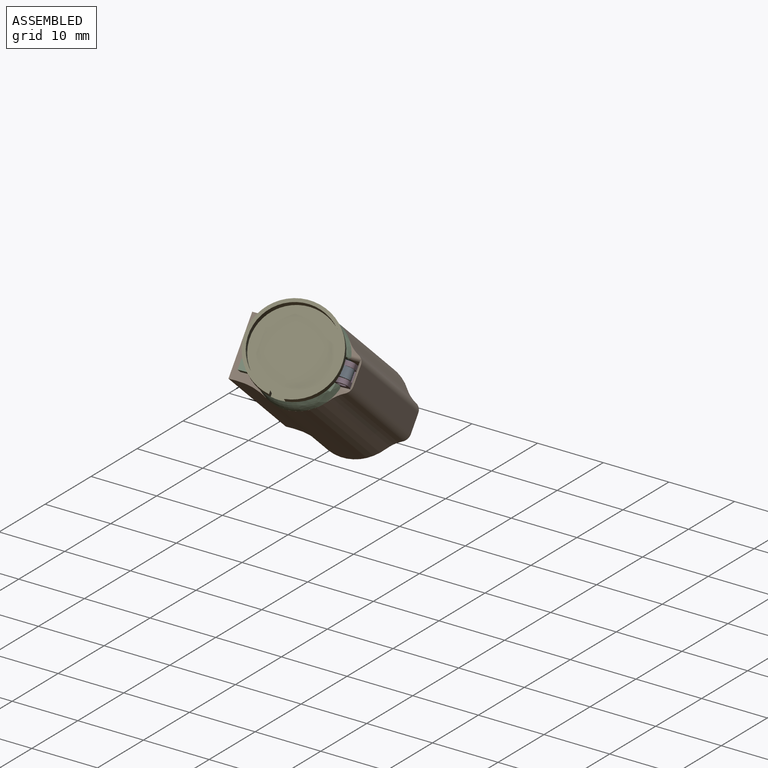
[diagram: assembled view]
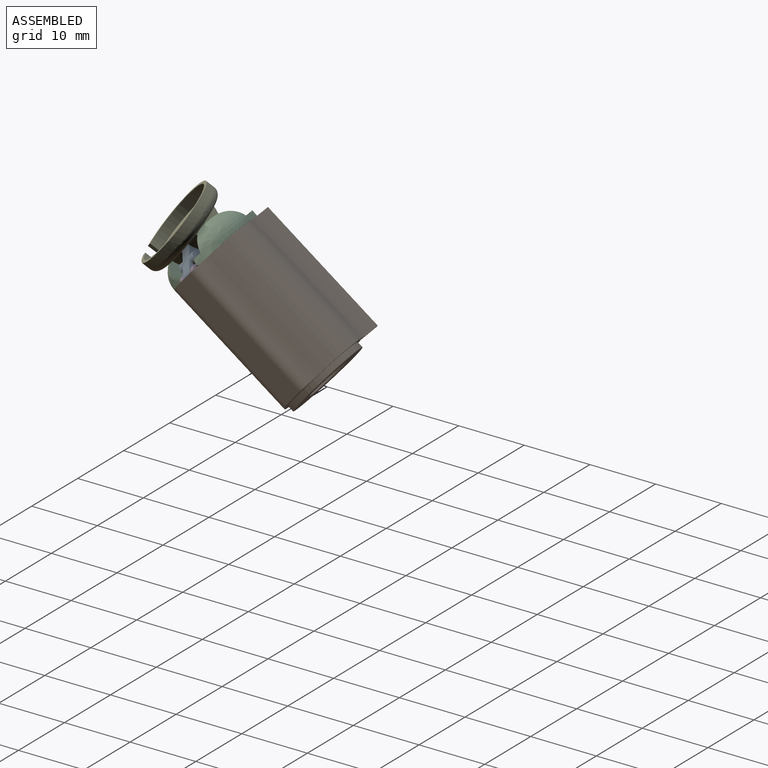
[diagram: assembled view, second angle]
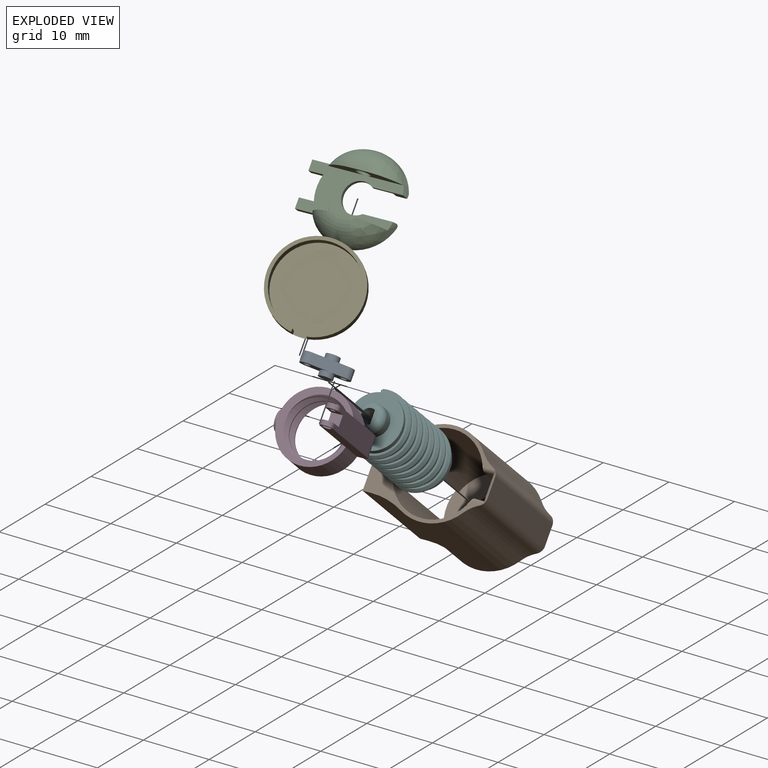
[diagram: exploded view]
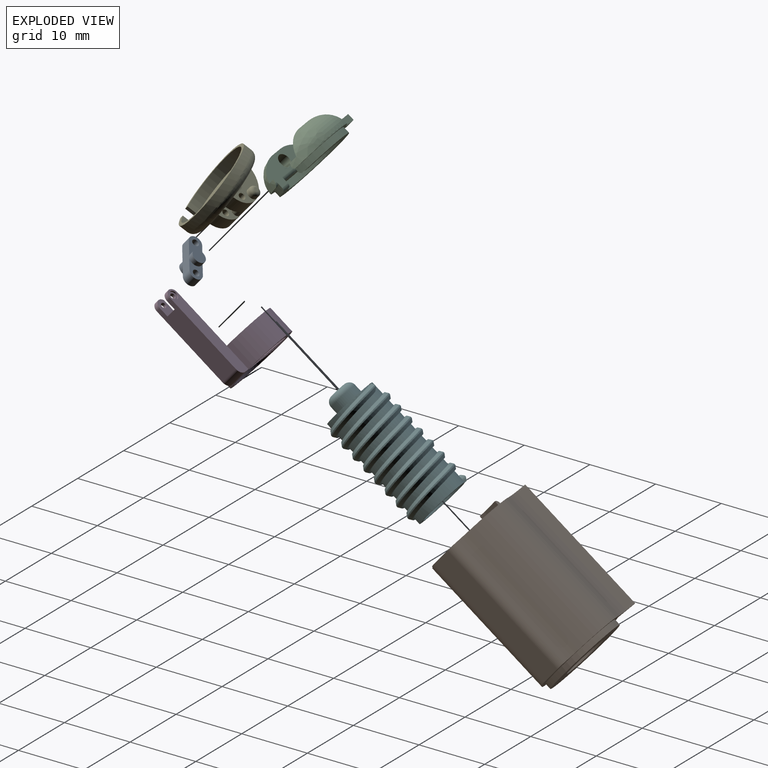
[diagram: exploded view, second angle]
ASSEMBLY  parts=6 mates=5
PART A: 14 faces, bbox 7x3x2 mm
  f0: plane 3.2x2mm, normal (0,-1,0), area 3.6mm2, adj f2,f3,f4,f7,f12
  f1: plane 3.2x2mm, normal (0,1,0), area 3.6mm2, adj f2,f3,f4,f7,f11
  f2: plane 5x1.5mm, normal (0,0,-1), area 7.5mm2, adj f0,f1,f3,f6,f8,f9
  f3: cylinder r=1mm len=2mm, axis (0,1,0), area 4.7mm2, adj f0,f1,f2,f4
  f4: plane 5x1.5mm, normal (0,0,1), area 7.5mm2, adj f0,f1,f3,f6,f8,f9
  f5: cylinder r=0.5mm len=1.5mm, axis (0,1,0), area 4.7mm2, adj f8,f9
  f6: cylinder r=1mm len=2mm, axis (0,1,0), area 4.7mm2, adj f2,f4,f8,f9
  f7: cylinder r=0.5mm len=1.5mm, axis (0,1,0), area 4.7mm2, adj f0,f1
  f8: plane 3.8x2mm, normal (0,-1,0), area 4.8mm2, adj f2,f4,f5,f6,f12
  f9: plane 3.8x2mm, normal (0,1,0), area 4.8mm2, adj f2,f4,f5,f6,f11
  f10: plane 2x2mm, normal (0,1,0), area 3.1mm2, adj f11
  f11: cylinder r=1mm len=2mm, axis (0,-1,0), area 4.7mm2, adj f1,f9,f10
  f12: cylinder r=1mm len=2mm, axis (0,-1,0), area 4.7mm2, adj f0,f8,f13
  f13: plane 2x2mm, normal (0,-1,0), area 3.1mm2, adj f12
PART B: 41 faces, bbox 16.7x13x22.1 mm
  f0: cylinder r=6.5mm len=8.2mm, axis (0,0,-1), area 12.4mm2, adj f12,f13,f23,f24,f25,f28,f29,f30
  f1: plane 20.2x9mm, normal (-1,0,0), area 24.4mm2, adj f6,f13,f22,f25,f26,f27,f28
  f2: cylinder r=6.5mm len=3.4mm, axis (0,0,-1), area 1.7mm2, adj f6,f15,f16,f37
  f3: cylinder r=6.5mm len=20.2mm, axis (0,0,-1), area 184.2mm2, adj f6,f13,f18,f36
  f4: cylinder r=6.5mm len=20.2mm, axis (0,0,-1), area 184.2mm2, adj f6,f13,f17,f35
  f5: plane 11.8x11.8mm, normal (0,0,-1), area 79.2mm2, adj f14,f19
  f6: plane 16.3x13mm, normal (0,0,1), area 46.2mm2, adj f1,f2,f3,f4,f11,f15,f16,f17
  f7: plane 18.6x1.43mm, normal (0,-1,0), area 26.5mm2, adj f8,f11,f12,f38
  f8: plane 18.6x3.6mm, normal (-1,0,0), area 67mm2, adj f7,f9,f12,f39
  f9: plane 18.6x1.43mm, normal (0,1,0), area 26.5mm2, adj f8,f11,f12,f40
  f10: plane 20.2x2.81mm, normal (1,0,0), area 56.8mm2, adj f13,f20,f21,f39
  f11: cylinder r=6mm len=20.1mm, axis (0,0,-1), area 573.8mm2, adj f6,f7,f9,f12,f15,f16,f22,f33
  f12: plane 13.65x12mm, normal (0,0,1), area 90.2mm2, adj f0,f7,f8,f9,f11,f14,f23,f24
  f13: plane 16.65x13mm, normal (0,0,-1), area 35.5mm2, adj f0,f1,f3,f4,f10,f17,f18,f19
  f14: cylinder r=3.1mm len=6.2mm, axis (0,0,-1), area 39mm2, adj f5,f12
  f15: plane 1x0.52mm, normal (0,1,0), area 0.5mm2, adj f2,f6,f11,f37
  f16: plane 1x0.52mm, normal (0,-1,0), area 0.5mm2, adj f2,f6,f11,f37
  f17: cylinder r=5mm len=20.2mm, axis (0,0,1), area 46.8mm2, adj f4,f6,f13,f21
  f18: cylinder r=5mm len=20.2mm, axis (0,0,1), area 46.8mm2, adj f3,f6,f13,f20
  f19: cylinder r=5.9mm len=11.8mm, axis (0,0,-1), area 33.4mm2, adj f5,f13
  f20: cylinder r=1.3mm len=20.2mm, axis (0,0,1), area 29.6mm2, adj f6,f10,f13,f18,f39,f40
  f21: cylinder r=1.3mm len=20.2mm, axis (0,0,1), area 29.6mm2, adj f6,f10,f13,f17,f38,f39
  f22: plane 8.2x3.4mm, normal (0,0,-1), area 21.4mm2, adj f1,f11,f23,f24,f25,f28,f31,f32
  f23: plane 18.1x2.65mm, normal (0,-1,0), area 45.2mm2, adj f0,f12,f22,f29,f31,f34
  f24: plane 18.1x2.65mm, normal (0,1,0), area 45.2mm2, adj f0,f12,f22,f30,f32,f33
  f25: plane 19.2x3.96mm, normal (0,-1,0), area 21.5mm2, adj f0,f1,f13,f22,f29,f31
  f26: plane 20.2x1.13mm, normal (0,1,0), area 22.7mm2, adj f1,f6,f13,f35
  f27: plane 20.2x1.13mm, normal (0,-1,0), area 22.7mm2, adj f1,f6,f13,f36
  f28: plane 19.2x3.96mm, normal (0,1,0), area 21.5mm2, adj f0,f1,f13,f22,f30,f32
  f29: plane 3.21x1mm, normal (0,0,-1), area 2.8mm2, adj f0,f23,f25,f31
  f30: plane 3.21x1mm, normal (0,0,-1), area 2.8mm2, adj f0,f24,f28,f32
  f31: plane 17x1mm, normal (-1,0,0), area 17mm2, adj f22,f23,f25,f29
  f32: plane 17x1mm, normal (-1,0,0), area 17mm2, adj f22,f24,f28,f30
  f33: plane 18.1x0.95mm, normal (-1,0,0), area 17.1mm2, adj f11,f12,f22,f24
  f34: plane 18.1x0.95mm, normal (-1,0,0), area 17.1mm2, adj f11,f12,f22,f23
  f35: cylinder r=10mm len=20.2mm, axis (0,0,-1), area 100.5mm2, adj f4,f6,f13,f26
  f36: cylinder r=10mm len=20.2mm, axis (0,0,-1), area 100.5mm2, adj f3,f6,f13,f27
  f37: torus R=6mm, axis (0,0,1), area 2.7mm2, adj f2,f11,f15,f16
  f38: cylinder r=0.5mm len=1.91mm, axis (-1,0,0), area 1.3mm2, adj f6,f7,f11,f21,f39
  f39: cylinder r=0.5mm len=4.2mm, axis (0,1,0), area 3mm2, adj f8,f10,f20,f21,f38,f40
  f40: cylinder r=0.5mm len=1.91mm, axis (1,0,0), area 1.3mm2, adj f6,f9,f11,f20,f39
PART C: 49 faces, bbox 14.1x13.1x4.6 mm
  f0: plane 2.01x0.17mm, normal (0,0,1), area 0.2mm2, adj f2,f27,f31,f36
  f1: plane 2.01x0.17mm, normal (0,0,1), area 0.2mm2, adj f28,f29,f30,f33
  f2: cylinder r=5.75mm len=0.05mm, axis (0,-1,0), area 0mm2, adj f0,f27,f35
  f3: plane 13.45x6.6mm, normal (0,0,1), area 46.2mm2, adj f4,f5,f9,f10,f11,f12,f13,f14
  f4: plane 4.62x1.52mm, normal (0,-1,0), area 3.7mm2, adj f3,f18,f19,f26,f37,f43,f45,f47
  f5: plane 4.62x1.52mm, normal (0,1,0), area 3.7mm2, adj f3,f18,f24,f26,f34,f42,f46,f48
  f6: plane 9x8.37mm, normal (0,0,-1), area 31.1mm2, adj f18,f42,f43,f44
  f7: plane 13.73x4.7mm, normal (0,0,-1), area 11.7mm2, adj f8,f9,f10,f11,f19,f20,f21,f35
  f8: cylinder r=6.5mm len=8.03mm, axis (0,0,-1), area 1.3mm2, adj f7,f35,f36,f37
  f9: plane 2.51x1mm, normal (0,1,0), area 2.3mm2, adj f3,f7,f10,f35
  f10: plane 1.5x1mm, normal (-1,0,0), area 1.5mm2, adj f3,f7,f9,f11
  f11: plane 2.13x1mm, normal (0,-1,0), area 2.1mm2, adj f3,f7,f10,f12
  f12: cylinder r=5.9mm len=3.6mm, axis (0,0,-1), area 7.3mm2, adj f3,f11,f13,f21,f22,f25
  f13: plane 2.13x1mm, normal (0,1,0), area 2.1mm2, adj f3,f12,f14,f17
  f14: plane 1.5x1mm, normal (-1,0,0), area 1.5mm2, adj f3,f13,f15,f17
  f15: plane 2.51x1mm, normal (0,-1,0), area 2.3mm2, adj f3,f14,f17,f32
  f16: cylinder r=6.5mm len=8.03mm, axis (0,0,-1), area 1.3mm2, adj f17,f32,f33,f34
  f17: plane 13.73x4.7mm, normal (0,0,-1), area 11.7mm2, adj f13,f14,f15,f16,f22,f23,f24,f32
  f18: cylinder r=4.5mm len=9mm, axis (0,0,1), area 24.6mm2, adj f4,f5,f6,f25,f42,f43,f47,f48
  f19: cylinder r=5.9mm len=11.22mm, axis (0,0,1), area 14.8mm2, adj f4,f7,f20,f25,f45,f47
  f20: plane 1x0.06mm, normal (-1,0,0), area 0.1mm2, adj f7,f19,f21,f25
  f21: plane 1x0.02mm, normal (0,1,0), area 0mm2, adj f7,f12,f20,f25
  f22: plane 1x0.02mm, normal (0,-1,0), area 0mm2, adj f12,f17,f23,f25
  f23: plane 1x0.06mm, normal (-1,0,0), area 0.1mm2, adj f17,f22,f24,f25
  f24: cylinder r=5.9mm len=11.22mm, axis (0,0,1), area 14.8mm2, adj f5,f17,f23,f25,f46,f48
  f25: plane 11.8x11.33mm, normal (0,0,-1), area 39.1mm2, adj f12,f18,f19,f20,f21,f22,f23,f24
  f26: cylinder r=2.25mm len=4.5mm, axis (0,0,1), area 5mm2, adj f3,f4,f5,f44
  f27: plane 10.72x2.5mm, normal (0,-1,0), area 17.6mm2, adj f0,f2,f3,f31,f35,f37,f39
  f28: plane 10.72x2.5mm, normal (0,1,0), area 17.6mm2, adj f1,f3,f29,f30,f32,f34,f41
  f29: cylinder r=5.75mm len=0.05mm, axis (0,1,0), area 0mm2, adj f1,f28,f32
  f30: cylinder r=5.75mm len=0.05mm, axis (0,1,0), area 0mm2, adj f1,f28,f34
  f31: cylinder r=5.75mm len=0.05mm, axis (0,-1,0), area 0mm2, adj f0,f27,f37
  f32: bspline ~6.25x5.04mm, area 16.7mm2, adj f3,f15,f16,f17,f28,f29,f33
  f33: torus R=3.2mm, axis (0,0,1), area 17.6mm2, adj f1,f16,f32,f34
  f34: bspline ~6.52x5.59mm, area 18.3mm2, adj f3,f5,f16,f17,f28,f30,f33,f46
  f35: bspline ~6.25x5.04mm, area 16.7mm2, adj f2,f3,f7,f8,f9,f27,f36
  f36: torus R=3.2mm, axis (0,0,1), area 17.6mm2, adj f0,f8,f35,f37
  f37: bspline ~6.52x5.59mm, area 18.3mm2, adj f3,f4,f7,f8,f27,f31,f36,f45
  f38: cone r=0mm half-angle=59deg, axis (0,-1,0), area 3.7mm2, adj f39
  f39: cylinder r=1mm len=2mm, axis (0,-1,0), area 9.4mm2, adj f27,f38
  f40: cone r=0mm half-angle=59deg, axis (0,1,0), area 3.7mm2, adj f41
  f41: cylinder r=1mm len=2mm, axis (0,1,0), area 9.4mm2, adj f28,f40
  f42: cylinder r=0.5mm len=2.77mm, axis (-1,0,0), area 2mm2, adj f5,f6,f18,f44
  f43: cylinder r=0.5mm len=2.77mm, axis (1,0,0), area 2mm2, adj f4,f6,f18,f44
  f44: torus R=2.75mm, axis (0,0,1), area 8.3mm2, adj f6,f26,f42,f43
  f45: cylinder r=0.5mm len=0.55mm, axis (1,0,0), area 0.3mm2, adj f4,f7,f19,f37
  f46: cylinder r=0.5mm len=0.55mm, axis (-1,0,0), area 0.3mm2, adj f5,f17,f24,f34
  f47: cylinder r=0.5mm len=1.75mm, axis (1,0,0), area 1.2mm2, adj f4,f18,f19,f25
  f48: cylinder r=0.5mm len=1.75mm, axis (-1,0,0), area 1.2mm2, adj f5,f18,f24,f25
PART D: 26 faces, bbox 13.2x11.5x15.7 mm
  f0: plane 14x1.86mm, normal (0,1,0), area 24.1mm2, adj f3,f5,f6,f10,f18,f21,f25
  f1: plane 2.3x1.7mm, normal (0,-1,0), area 3.1mm2, adj f3,f5,f16,f18,f20
  f2: plane 2.3x1.7mm, normal (0,1,0), area 3.1mm2, adj f3,f5,f16,f17,f19
  f3: cylinder r=5.25mm len=9.59mm, axis (0,0,-1), area 25.8mm2, adj f0,f1,f2,f4,f11,f16,f17,f18
  f4: plane 14x1.86mm, normal (0,-1,0), area 24.1mm2, adj f3,f5,f6,f10,f17,f21,f23
  f5: plane 12.07x3mm, normal (1,0,0), area 34mm2, adj f0,f1,f2,f4,f16,f17,f18,f21
  f6: cylinder r=5.25mm len=10.5mm, axis (0,0,-1), area 113.3mm2, adj f0,f4,f10,f11,f12
  f7: cylinder r=4.05mm len=8.1mm, axis (0,0,-1), area 10.2mm2, adj f8,f9,f10,f11
  f8: bspline ~10.97x9.5mm, area 63.1mm2, adj f7,f9,f10,f11
  f9: bspline ~10.97x9.5mm, area 63.1mm2, adj f7,f8,f10,f11
  f10: plane 11.69x11.05mm, normal (0,0,-1), area 28.7mm2, adj f0,f4,f6,f7,f8,f9,f21
  f11: plane 11.05x11.05mm, normal (0,0,1), area 26.6mm2, adj f3,f6,f7,f8,f9
  f12: cylinder r=1.5mm len=3mm, axis (1,0,0), area 5.7mm2, adj f6,f13
  f13: plane 3x3mm, normal (-1,0,0), area 3.6mm2, adj f12,f15
  f14: plane 2.1x2.1mm, normal (-1,0,0), area 3.5mm2, adj f15
  f15: cylinder r=1.05mm len=2.1mm, axis (-1,0,0), area 5.9mm2, adj f13,f14
  f16: plane 1.7x1.6mm, normal (0,0,1), area 2.7mm2, adj f1,f2,f3,f5
  f17: cylinder r=0.93mm len=1.86mm, axis (0,-1,0), area 1.9mm2, adj f2,f3,f4,f5
  f18: cylinder r=0.93mm len=1.86mm, axis (0,-1,0), area 1.9mm2, adj f0,f1,f3,f5
  f19: cylinder r=0.4mm len=0.8mm, axis (0,-1,0), area 1.3mm2, adj f2,f22
  f20: cylinder r=0.4mm len=0.8mm, axis (0,-1,0), area 1.3mm2, adj f1,f24
  f21: cylinder r=1mm len=3mm, axis (0,1,0), area 4.7mm2, adj f0,f4,f5,f10
  f22: plane 1.3x1.3mm, normal (0,-1,0), area 0.8mm2, adj f19,f23
  f23: cylinder r=0.65mm len=1.3mm, axis (0,-1,0), area 0.8mm2, adj f4,f22
  f24: plane 1.3x1.3mm, normal (0,1,0), area 0.8mm2, adj f20,f25
  f25: cylinder r=0.65mm len=1.3mm, axis (0,1,0), area 0.8mm2, adj f0,f24
PART E: 33 faces, bbox 5.3x14.1x14.1 mm
  f0: plane 2x0.3mm, normal (0,0,1), area 0.6mm2, adj f1,f6,f7,f31
  f1: plane 11x11mm, normal (1,0,0), area 63.1mm2, adj f0,f4,f5,f6,f7,f9,f22,f23
  f2: plane 13x12.92mm, normal (-1,0,0), area 18.6mm2, adj f17,f18,f19,f20
  f3: plane 1.7x0.53mm, normal (-1,0,0), area 0.9mm2, adj f5,f6,f12,f30
  f4: plane 6.82x3mm, normal (0,1,0), area 12.4mm2, adj f1,f8,f9,f13,f23,f29,f31
  f5: plane 4.1x3mm, normal (0,-1,0), area 7.2mm2, adj f1,f3,f9,f12,f27,f30,f31,f32
  f6: plane 4.1x3mm, normal (0,1,0), area 7.2mm2, adj f0,f1,f3,f12,f26,f30,f31,f32
  f7: plane 6.82x3mm, normal (0,-1,0), area 12.4mm2, adj f0,f1,f8,f11,f23,f24,f31
  f8: plane 5.7x0.14mm, normal (1,0,0), area 0.8mm2, adj f4,f7,f23,f31
  f9: plane 2x0.3mm, normal (0,0,1), area 0.6mm2, adj f1,f4,f5,f31
  f10: plane 0.6x0.6mm, normal (0,-1,0), area 0.3mm2, adj f16
  f11: cylinder r=0.8mm len=1.6mm, axis (0,1,0), area 2.5mm2, adj f7,f16
  f12: cylinder r=0.8mm len=1.7mm, axis (0,1,0), area 3.6mm2, adj f3,f5,f6,f32
  f13: cylinder r=0.8mm len=1.6mm, axis (0,1,0), area 2.5mm2, adj f4,f15
  f14: plane 0.6x0.6mm, normal (0,1,0), area 0.3mm2, adj f15
  f15: torus R=0.3mm, axis (0,-1,0), area 3.1mm2, adj f13,f14
  f16: torus R=0.3mm, axis (0,-1,0), area 3.1mm2, adj f10,f11
  f17: cylinder r=6.5mm len=13mm, axis (1,0,0), area 50.5mm2, adj f2,f18,f20,f22
  f18: plane 1.6x0.51mm, normal (0,0,-1), area 0.8mm2, adj f2,f17,f19,f21,f22
  f19: cylinder r=6mm len=12mm, axis (-1,0,0), area 57.1mm2, adj f2,f18,f20,f21
  f20: plane 1.6x0.51mm, normal (0,0,1), area 0.8mm2, adj f2,f17,f19,f21,f22
  f21: plane 12.45x12mm, normal (-1,0,0), area 114mm2, adj f18,f19,f20,f22
  f22: torus R=5.5mm, axis (-1,0,0), area 60mm2, adj f1,f17,f18,f20,f21
  f23: cylinder r=4.15mm len=5.7mm, axis (0,1,0), area 30.5mm2, adj f1,f4,f7,f8
  f24: cylinder r=0.65mm len=1.3mm, axis (0,-1,0), area 0mm2, adj f7,f25
  f25: plane 1.3x1.3mm, normal (0,-1,0), area 0.5mm2, adj f24,f26
  f26: cylinder r=0.5mm len=1.99mm, axis (0,-1,0), area 6.3mm2, adj f6,f25
  f27: cylinder r=0.5mm len=2mm, axis (0,-1,0), area 6.3mm2, adj f5,f28
  f28: plane 1.31x1.31mm, normal (0,1,0), area 0.5mm2, adj f27,f29
  f29: cylinder r=0.65mm len=1.3mm, axis (0,1,0), area 0mm2, adj f4,f28
  f30: plane 2x1.7mm, normal (0,0,1), area 3.4mm2, adj f1,f3,f5,f6
  f31: cylinder r=2.7mm len=5.7mm, axis (0,-1,0), area 17.1mm2, adj f0,f4,f5,f6,f7,f8,f9,f32
  f32: cylinder r=0.7mm len=1.7mm, axis (0,-1,0), area 2.4mm2, adj f5,f6,f12,f31
PART F: 22 faces, bbox 8.9x10.3x19.3 mm
  f0: cylinder r=3.2mm len=16.6mm, axis (0,0,1), area 333.8mm2, adj f7,f12
  f1: bspline ~16.45x10.28mm, area 121.1mm2, adj f3,f6,f13,f15,f16,f18
  f2: cylinder r=3.85mm len=17mm, axis (0,0,-1), area 201.5mm2, adj f3,f5,f12,f13,f14,f15,f16,f19
  f3: bspline ~16x9.58mm, area 59.8mm2, adj f1,f2,f15,f20
  f4: bspline ~16.45x10.28mm, area 115.8mm2, adj f5,f6,f12,f14,f15,f16
  f5: bspline ~16x9.58mm, area 59.7mm2, adj f2,f4,f12,f16
  f6: cylinder r=4.45mm len=16mm, axis (0,0,-1), area 112.6mm2, adj f1,f4,f15,f16
  f7: plane 6.4x6.4mm, normal (0,0,-1), area 29.2mm2, adj f0,f8,f9
  f8: cylinder r=1.1mm len=2.6mm, axis (0,0,-1), area 11.8mm2, adj f7,f9,f17
  f9: plane 2.6x1.93mm, normal (-1,0,0), area 5mm2, adj f7,f8,f11
  f10: cylinder r=2.05mm len=4.1mm, axis (0,0,-1), area 16.1mm2, adj f17,f21
  f11: plane 1.93x0.58mm, normal (0,0,1), area 0.8mm2, adj f9,f17
  f12: plane 7.72x7.72mm, normal (0,0,-1), area 14.4mm2, adj f0,f2,f4,f5,f14
  f13: bspline ~2.29x1.11mm, area 0.1mm2, adj f1,f2,f16,f19
  f14: bspline ~1.11x0.99mm, area 0.1mm2, adj f2,f4,f12,f15
  f15: bspline ~1.25x1.23mm, area 0.7mm2, adj f1,f2,f3,f4,f6,f14
  f16: bspline ~1.03x0.99mm, area 0.7mm2, adj f1,f2,f4,f5,f6,f13
  f17: torus R=1.1mm, axis (0,0,1), area 16mm2, adj f8,f10,f11
  f18: extruded ~0.1x0.03mm, area 0mm2, adj f1,f19,f20,f21
  f19: plane 0.3x0.1mm, normal (-0.99,-0.17,0), area 0mm2, adj f2,f13,f18,f21
  f20: plane 0.3x0.1mm, normal (0.99,0.15,0), area 0mm2, adj f2,f3,f18,f21
  f21: plane 7.95x7.7mm, normal (0,0,1), area 33.4mm2, adj f2,f10,f18,f19,f20
PLACE A rot(axis=(0.73,0.6,0.33),63.9deg) t=(-0.73,27.34,6.14)mm
PLACE B rot(axis=(0.99,0.08,0.1),50.2deg) t=(-9.31,42.59,-8.16)mm
PLACE C rot(axis=(0.99,0.08,0.1),50.2deg) t=(-10.19,49.35,-13.89)mm
PLACE D rot(axis=(0.99,0.08,0.1),50.2deg) t=(-9.2,40.6,-6.49)mm
PLACE E rot(axis=(0.26,0.87,0.42),116.7deg) t=(-7.64,24.07,6.41)mm
PLACE F rot(axis=(0.99,0.08,0.1),50.2deg) t=(-7.44,28.17,4.06)mm
MATE fastened F.f0 <-> C.f8  axis (0.1,-0.76,0.64) through (-7.19,26.19,5.73)mm
MATE fastened B.f0 <-> F.f0  axis (-0.1,0.76,-0.64) through (-9.12,41.08,-6.87)mm
MATE revolute A.f3 <-> D.f17  axis (0.05,-0.64,-0.77) through (-1.46,27.03,4.4)mm
MATE revolute E.f24 <-> A.f5  axis (0.05,-0.64,-0.77) through (-5.06,22.99,4.82)mm
MATE revolute C.f38 <-> E.f11  axis (0.05,-0.64,-0.77) through (-7.18,27,9.02)mm
